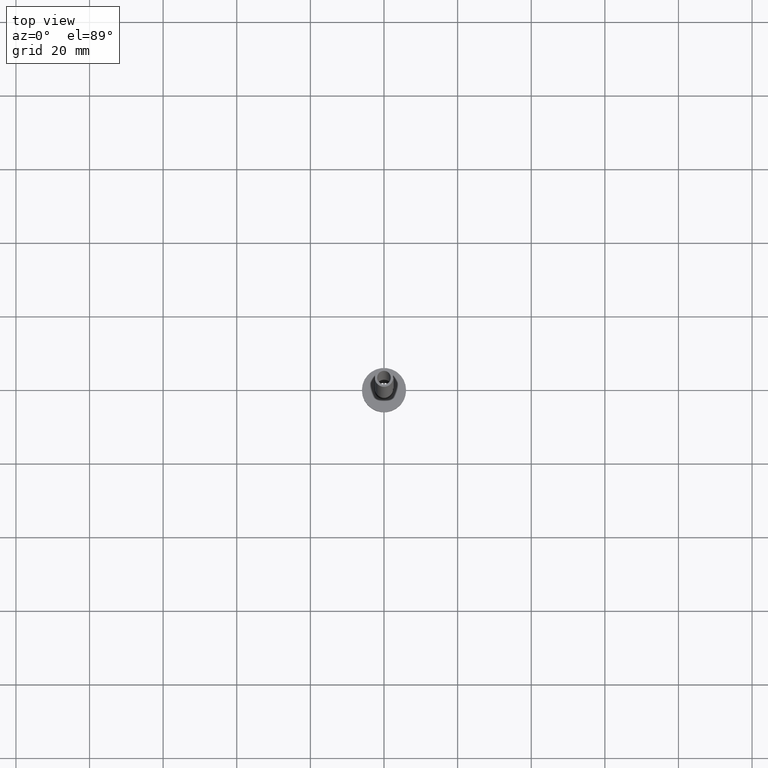
[diagram: clean part render]
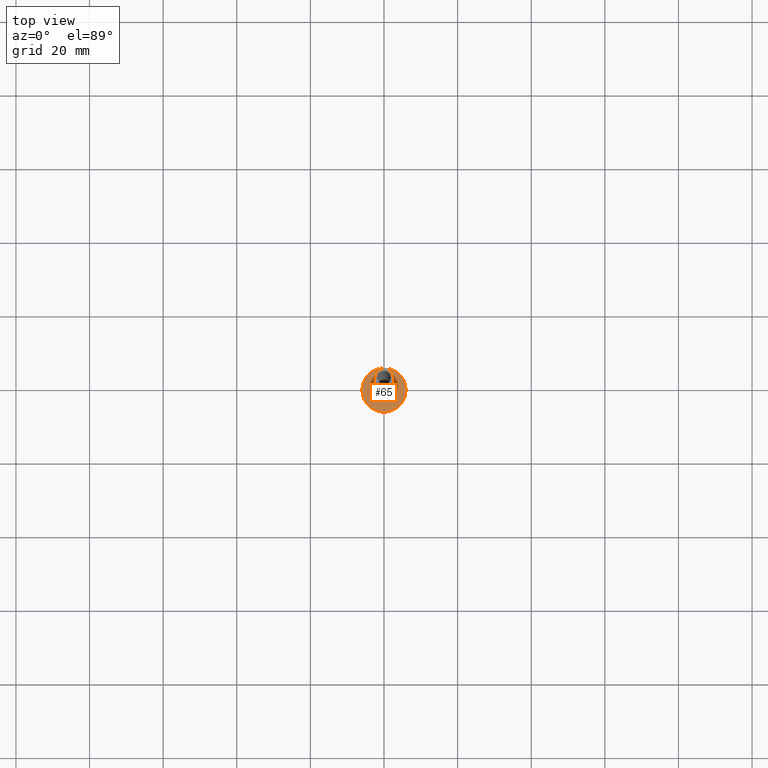
[diagram: same view with one face highlighted and labeled with its STEP entity id]
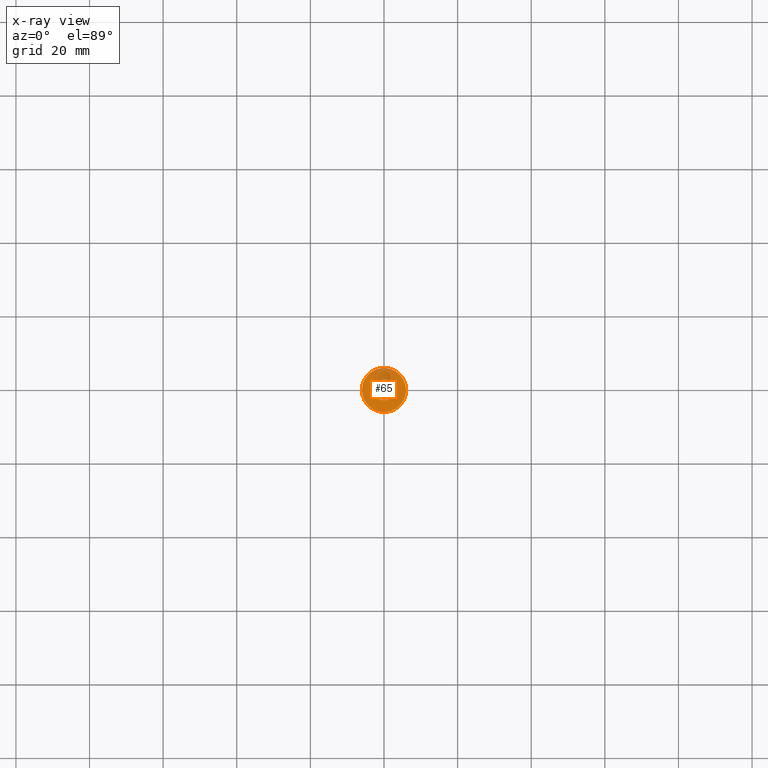
[diagram: x-ray of the same camera — body ghosted, the highlighted face saturated]
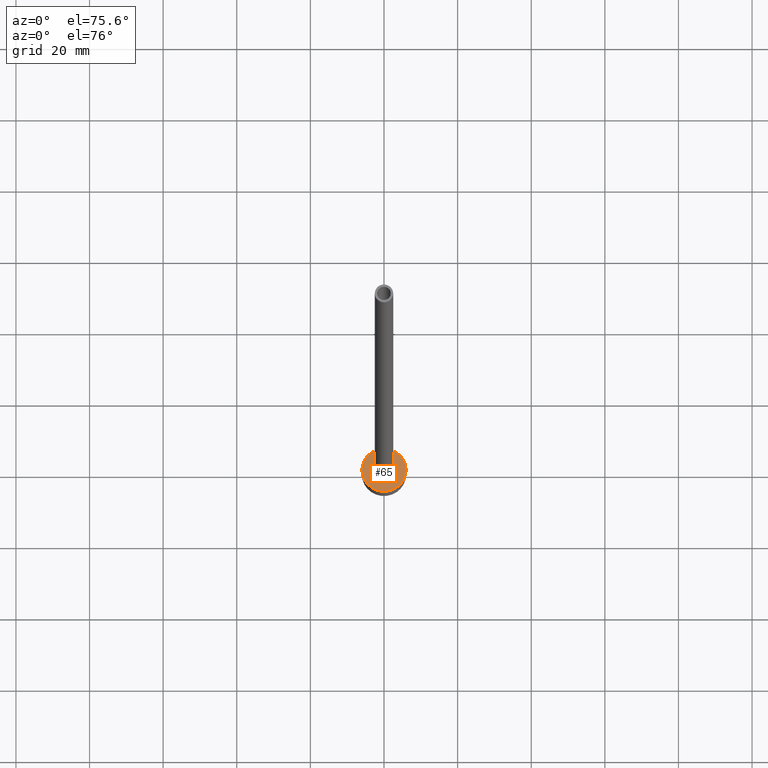
[diagram: same view with one face highlighted and labeled with its STEP entity id]
A machine part, top view. The second image highlights one B-rep face of the part: STEP entity #65.
The next image is the same camera in x-ray: the body ghosted, the highlighted face saturated — about 17% of this face is hidden behind the body in this view.
A second angle (auxiliary view) of the same face is appended — the face is thin or edge-on in the first view.
In plain terms, the highlighted planar face has unit normal (0, 0, 1).
Its self-contained STEP definition (entity closure, byte-faithful):
#3 = DIRECTION ( 'NONE',  ( 0.000000000000000000, 0.000000000000000000, 1.000000000000000000 ) ) ;
#29 = EDGE_CURVE ( 'NONE', #446, #220, #286, .T. ) ;
#42 = CARTESIAN_POINT ( 'NONE',  ( 0.000000000000000000, 0.000000000000000000, 5.000000000000000000 ) ) ;
#65 = ADVANCED_FACE ( 'NONE', ( #104, #277 ), #278, .T. ) ;
#86 = CIRCLE ( 'NONE', #348, 6.000000000000000888 ) ;
#99 = DIRECTION ( 'NONE',  ( 1.000000000000000000, 0.000000000000000000, 0.000000000000000000 ) ) ;
#104 = FACE_BOUND ( 'NONE', #327, .T. ) ;
#115 = EDGE_CURVE ( 'NONE', #220, #446, #86, .T. ) ;
#129 = ORIENTED_EDGE ( 'NONE', *, *, #29, .T. ) ;
#143 = DIRECTION ( 'NONE',  ( 1.000000000000000000, 0.000000000000000000, -0.000000000000000000 ) ) ;
#147 = CARTESIAN_POINT ( 'NONE',  ( -2.799999999999999822, 3.429011037612589276E-16, 4.999999999999999112 ) ) ;
#150 = ORIENTED_EDGE ( 'NONE', *, *, #198, .T. ) ;
#167 = CARTESIAN_POINT ( 'NONE',  ( -6.000000000000000888, 0.000000000000000000, 5.000000000000000000 ) ) ;
#171 = DIRECTION ( 'NONE',  ( 1.000000000000000000, 0.000000000000000000, 0.000000000000000000 ) ) ;
#173 = DIRECTION ( 'NONE',  ( 0.000000000000000000, 0.000000000000000000, 1.000000000000000000 ) ) ;
#183 = CARTESIAN_POINT ( 'NONE',  ( 0.000000000000000000, 0.000000000000000000, 5.000000000000000000 ) ) ;
#188 = CIRCLE ( 'NONE', #324, 2.799999999999999822 ) ;
#189 = CIRCLE ( 'NONE', #222, 2.799999999999999822 ) ;
#198 = EDGE_CURVE ( 'NONE', #212, #264, #188, .T. ) ;
#206 = DIRECTION ( 'NONE',  ( -0.000000000000000000, -0.000000000000000000, -1.000000000000000000 ) ) ;
#212 = VERTEX_POINT ( 'NONE', #147 ) ;
#220 = VERTEX_POINT ( 'NONE', #228 ) ;
#222 = AXIS2_PLACEMENT_3D ( 'NONE', #382, #387, #99 ) ;
#228 = CARTESIAN_POINT ( 'NONE',  ( 6.000000000000000888, 7.347880794884120722E-16, 5.000000000000000000 ) ) ;
#240 = DIRECTION ( 'NONE',  ( 0.000000000000000000, 0.000000000000000000, 1.000000000000000000 ) ) ;
#246 = DIRECTION ( 'NONE',  ( 1.000000000000000000, 0.000000000000000000, 0.000000000000000000 ) ) ;
#264 = VERTEX_POINT ( 'NONE', #405 ) ;
#267 = EDGE_LOOP ( 'NONE', ( #129, #300 ) ) ;
#277 = FACE_OUTER_BOUND ( 'NONE', #267, .T. ) ;
#278 = PLANE ( 'NONE',  #279 ) ;
#279 = AXIS2_PLACEMENT_3D ( 'NONE', #419, #173, #143 ) ;
#286 = CIRCLE ( 'NONE', #380, 6.000000000000000888 ) ;
#300 = ORIENTED_EDGE ( 'NONE', *, *, #115, .T. ) ;
#324 = AXIS2_PLACEMENT_3D ( 'NONE', #42, #206, #356 ) ;
#327 = EDGE_LOOP ( 'NONE', ( #411, #150 ) ) ;
#348 = AXIS2_PLACEMENT_3D ( 'NONE', #183, #3, #246 ) ;
#356 = DIRECTION ( 'NONE',  ( 1.000000000000000000, 0.000000000000000000, 0.000000000000000000 ) ) ;
#380 = AXIS2_PLACEMENT_3D ( 'NONE', #418, #240, #171 ) ;
#382 = CARTESIAN_POINT ( 'NONE',  ( 0.000000000000000000, 0.000000000000000000, 5.000000000000000000 ) ) ;
#387 = DIRECTION ( 'NONE',  ( -0.000000000000000000, -0.000000000000000000, -1.000000000000000000 ) ) ;
#394 = EDGE_CURVE ( 'NONE', #264, #212, #189, .T. ) ;
#405 = CARTESIAN_POINT ( 'NONE',  ( 2.799999999999999822, 0.000000000000000000, 4.999999999999999112 ) ) ;
#411 = ORIENTED_EDGE ( 'NONE', *, *, #394, .T. ) ;
#418 = CARTESIAN_POINT ( 'NONE',  ( 0.000000000000000000, 0.000000000000000000, 5.000000000000000000 ) ) ;
#419 = CARTESIAN_POINT ( 'NONE',  ( 0.000000000000000000, 0.000000000000000000, 5.000000000000000000 ) ) ;
#446 = VERTEX_POINT ( 'NONE', #167 ) ;